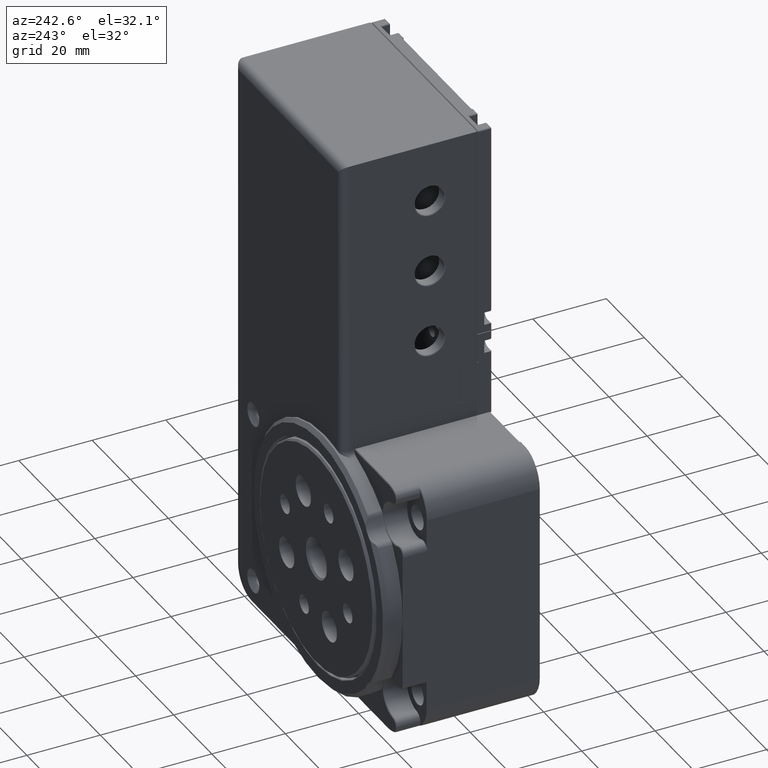
[diagram: clean part render]
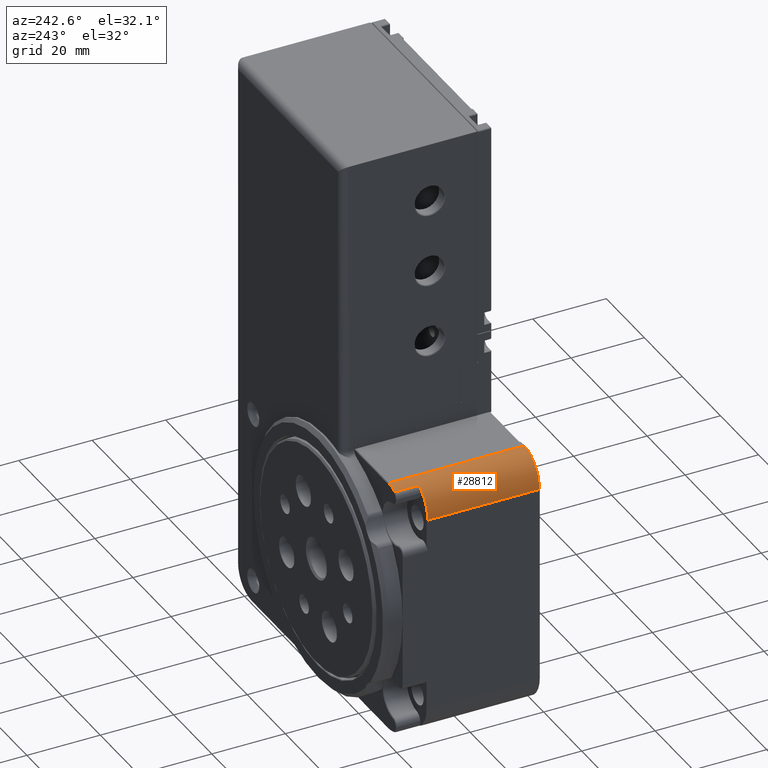
[diagram: same view with one face highlighted and labeled with its STEP entity id]
A machine part, auxiliary view. The second image highlights one B-rep face of the part: STEP entity #28812.
In plain terms, the highlighted cylindrical surface (edge-blend (fillet) strip) has radius 8 mm, axis along (0, -1, 0).
Its self-contained STEP definition (entity closure, byte-faithful):
#414 = EDGE_CURVE ( 'NONE', #43510, #53798, #37025, .T. ) ;
#573 = DIRECTION ( 'NONE',  ( 0.000000000000000000, 0.000000000000000000, -1.000000000000000000 ) ) ;
#2286 = DIRECTION ( 'NONE',  ( 0.000000000000000000, 0.000000000000000000, -1.000000000000000000 ) ) ;
#2493 = VERTEX_POINT ( 'NONE', #40715 ) ;
#7063 = DIRECTION ( 'NONE',  ( 0.000000000000000000, 0.000000000000000000, 1.000000000000000000 ) ) ;
#8565 = EDGE_CURVE ( 'NONE', #17822, #2493, #24468, .T. ) ;
#8814 = AXIS2_PLACEMENT_3D ( 'NONE', #15242, #32868, #2286 ) ;
#9195 = VERTEX_POINT ( 'NONE', #30091 ) ;
#9681 = DIRECTION ( 'NONE',  ( 0.000000000000000000, -1.000000000000000000, 0.000000000000000000 ) ) ;
#10130 = CARTESIAN_POINT ( 'NONE',  ( -41.10931072687199617, 12.13187534622830199, 104.0000000000000000 ) ) ;
#11924 = DIRECTION ( 'NONE',  ( 0.000000000000000000, -1.000000000000000000, 0.000000000000000000 ) ) ;
#14116 = FACE_OUTER_BOUND ( 'NONE', #15674, .T. ) ;
#15242 = CARTESIAN_POINT ( 'NONE',  ( -33.10931072687199617, -18.26812465377170014, 104.0000000000000000 ) ) ;
#15674 = EDGE_LOOP ( 'NONE', ( #45235, #18995, #33674, #19247, #26457, #44653 ) ) ;
#17822 = VERTEX_POINT ( 'NONE', #56577 ) ;
#18995 = ORIENTED_EDGE ( 'NONE', *, *, #414, .T. ) ;
#19247 = ORIENTED_EDGE ( 'NONE', *, *, #8565, .T. ) ;
#19701 = CARTESIAN_POINT ( 'NONE',  ( -33.10931072687199617, 18.63187534622829844, 104.0000000000000000 ) ) ;
#20006 = LINE ( 'NONE', #42258, #32677 ) ;
#22431 = EDGE_CURVE ( 'NONE', #9195, #43510, #52445, .T. ) ;
#22759 = LINE ( 'NONE', #31713, #28266 ) ;
#22768 = CYLINDRICAL_SURFACE ( 'NONE', #27439, 7.999999999999992895 ) ;
#24468 = CIRCLE ( 'NONE', #8814, 7.999999999999992895 ) ;
#25756 = VECTOR ( 'NONE', #9681, 1000.000000000000000 ) ;
#26375 = EDGE_CURVE ( 'NONE', #28259, #9195, #49571, .T. ) ;
#26457 = ORIENTED_EDGE ( 'NONE', *, *, #33976, .F. ) ;
#26794 = DIRECTION ( 'NONE',  ( 0.000000000000000000, 1.000000000000000000, 0.000000000000000000 ) ) ;
#27439 = AXIS2_PLACEMENT_3D ( 'NONE', #54564, #36642, #573 ) ;
#27494 = EDGE_CURVE ( 'NONE', #17822, #53798, #22759, .T. ) ;
#28125 = CARTESIAN_POINT ( 'NONE',  ( -36.36878405038500262, 18.83187534622829773, 111.3058766519362166 ) ) ;
#28259 = VERTEX_POINT ( 'NONE', #35561 ) ;
#28266 = VECTOR ( 'NONE', #26794, 1000.000000000000000 ) ;
#28812 = ADVANCED_FACE ( 'NONE', ( #14116 ), #22768, .T. ) ;
#30091 = CARTESIAN_POINT ( 'NONE',  ( -36.36878405038500262, 18.63187534622829844, 111.3058766519362166 ) ) ;
#30598 = AXIS2_PLACEMENT_3D ( 'NONE', #37344, #54707, #7063 ) ;
#31713 = CARTESIAN_POINT ( 'NONE',  ( -41.10931072687199617, 18.83187534622829773, 104.0000000000000000 ) ) ;
#31881 = DIRECTION ( 'NONE',  ( 0.000000000000000000, -1.000000000000000000, 0.000000000000000000 ) ) ;
#32026 = AXIS2_PLACEMENT_3D ( 'NONE', #19701, #31881, #54146 ) ;
#32677 = VECTOR ( 'NONE', #11924, 1000.000000000000000 ) ;
#32868 = DIRECTION ( 'NONE',  ( 0.000000000000000000, 1.000000000000000000, 0.000000000000000000 ) ) ;
#33674 = ORIENTED_EDGE ( 'NONE', *, *, #27494, .F. ) ;
#33976 = EDGE_CURVE ( 'NONE', #28259, #2493, #20006, .T. ) ;
#35561 = CARTESIAN_POINT ( 'NONE',  ( -33.10931072687199617, 18.63187534622829844, 112.0000000000000000 ) ) ;
#36642 = DIRECTION ( 'NONE',  ( 0.000000000000000000, -1.000000000000000000, 0.000000000000000000 ) ) ;
#37025 = CIRCLE ( 'NONE', #30598, 7.999999999999992895 ) ;
#37344 = CARTESIAN_POINT ( 'NONE',  ( -33.10931072687199617, 12.13187534622830199, 104.0000000000000000 ) ) ;
#40715 = CARTESIAN_POINT ( 'NONE',  ( -33.10931072687199617, -18.26812465377170014, 112.0000000000000000 ) ) ;
#42258 = CARTESIAN_POINT ( 'NONE',  ( -33.10931072687199617, 18.83187534622829773, 112.0000000000000000 ) ) ;
#43510 = VERTEX_POINT ( 'NONE', #48410 ) ;
#44653 = ORIENTED_EDGE ( 'NONE', *, *, #26375, .T. ) ;
#45235 = ORIENTED_EDGE ( 'NONE', *, *, #22431, .T. ) ;
#48410 = CARTESIAN_POINT ( 'NONE',  ( -36.36878405038500262, 12.13187534622830199, 111.3058766519362166 ) ) ;
#49571 = CIRCLE ( 'NONE', #32026, 7.999999999999992895 ) ;
#52445 = LINE ( 'NONE', #28125, #25756 ) ;
#53798 = VERTEX_POINT ( 'NONE', #10130 ) ;
#54146 = DIRECTION ( 'NONE',  ( 0.000000000000000000, 0.000000000000000000, -1.000000000000000000 ) ) ;
#54564 = CARTESIAN_POINT ( 'NONE',  ( -33.10931072687199617, 18.83187534622829773, 104.0000000000000000 ) ) ;
#54707 = DIRECTION ( 'NONE',  ( 0.000000000000000000, -1.000000000000000000, 0.000000000000000000 ) ) ;
#56577 = CARTESIAN_POINT ( 'NONE',  ( -41.10931072687199617, -18.26812465377170014, 104.0000000000000000 ) ) ;